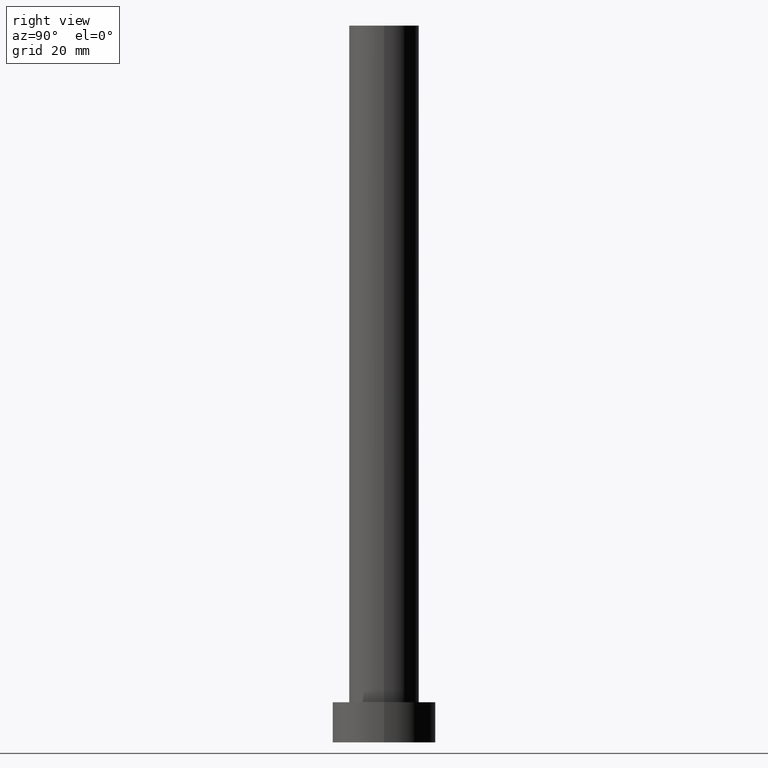
[diagram: clean part render]
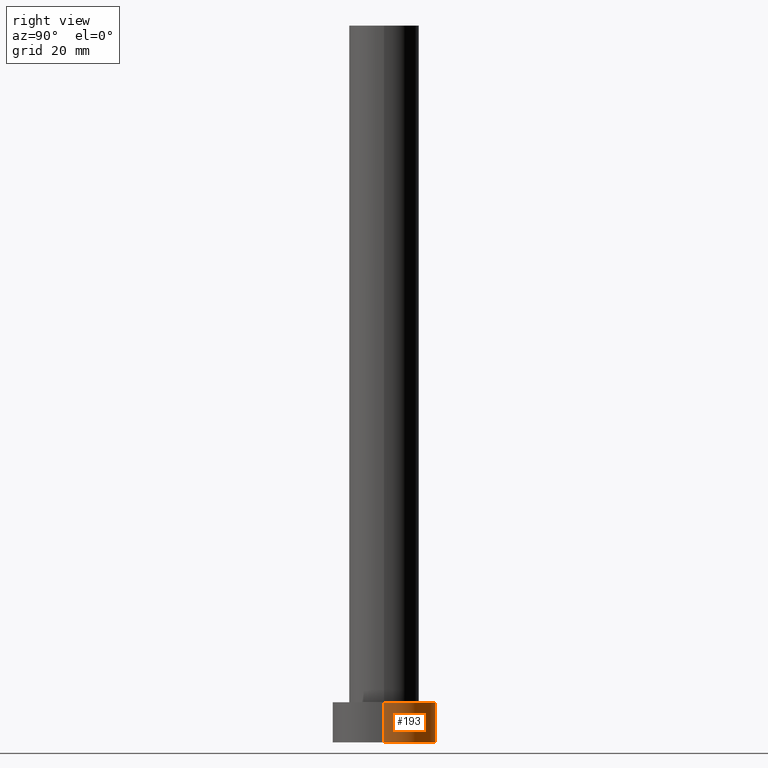
[diagram: same view with one face highlighted and labeled with its STEP entity id]
A machine part, right view. The second image highlights one B-rep face of the part: STEP entity #193.
In plain terms, the highlighted cylindrical surface (partial cylindrical patch) has radius 9 mm, axis along (-0, -0, -1).
Its self-contained STEP definition (entity closure, byte-faithful):
#21 = AXIS2_PLACEMENT_3D ( 'NONE', #67, #230, #252 ) ;
#22 = VERTEX_POINT ( 'NONE', #172 ) ;
#25 = CARTESIAN_POINT ( 'NONE',  ( 0.000000000000000000, 0.000000000000000000, 0.000000000000000000 ) ) ;
#30 = CARTESIAN_POINT ( 'NONE',  ( 0.000000000000000000, 0.000000000000000000, 7.000000000000000000 ) ) ;
#32 = EDGE_CURVE ( 'NONE', #238, #139, #147, .T. ) ;
#51 = LINE ( 'NONE', #105, #243 ) ;
#67 = CARTESIAN_POINT ( 'NONE',  ( 0.000000000000000000, 0.000000000000000000, 7.000000000000000000 ) ) ;
#73 = DIRECTION ( 'NONE',  ( 1.000000000000000000, 0.000000000000000000, 0.000000000000000000 ) ) ;
#76 = VERTEX_POINT ( 'NONE', #108 ) ;
#105 = CARTESIAN_POINT ( 'NONE',  ( 9.000000000000000000, 1.102182119232617714E-15, 7.000000000000000000 ) ) ;
#107 = DIRECTION ( 'NONE',  ( 0.000000000000000000, 0.000000000000000000, 1.000000000000000000 ) ) ;
#108 = CARTESIAN_POINT ( 'NONE',  ( -9.000000000000000000, 0.000000000000000000, 7.000000000000000000 ) ) ;
#121 = EDGE_CURVE ( 'NONE', #22, #76, #133, .T. ) ;
#133 = CIRCLE ( 'NONE', #197, 9.000000000000000000 ) ;
#134 = VECTOR ( 'NONE', #223, 1000.000000000000000 ) ;
#139 = VERTEX_POINT ( 'NONE', #247 ) ;
#143 = DIRECTION ( 'NONE',  ( -0.000000000000000000, -0.000000000000000000, -1.000000000000000000 ) ) ;
#145 = LINE ( 'NONE', #146, #134 ) ;
#146 = CARTESIAN_POINT ( 'NONE',  ( -9.000000000000000000, 0.000000000000000000, 7.000000000000000000 ) ) ;
#147 = CIRCLE ( 'NONE', #152, 9.000000000000000000 ) ;
#150 = EDGE_CURVE ( 'NONE', #22, #238, #51, .T. ) ;
#152 = AXIS2_PLACEMENT_3D ( 'NONE', #25, #178, #73 ) ;
#172 = CARTESIAN_POINT ( 'NONE',  ( 9.000000000000000000, 1.102182119232617714E-15, 7.000000000000000000 ) ) ;
#178 = DIRECTION ( 'NONE',  ( 0.000000000000000000, 0.000000000000000000, 1.000000000000000000 ) ) ;
#187 = CYLINDRICAL_SURFACE ( 'NONE', #21, 9.000000000000000000 ) ;
#188 = EDGE_CURVE ( 'NONE', #76, #139, #145, .T. ) ;
#190 = CARTESIAN_POINT ( 'NONE',  ( 9.000000000000000000, 1.102182119232617714E-15, 0.000000000000000000 ) ) ;
#193 = ADVANCED_FACE ( 'NONE', ( #228 ), #187, .T. ) ;
#197 = AXIS2_PLACEMENT_3D ( 'NONE', #30, #107, #248 ) ;
#198 = ORIENTED_EDGE ( 'NONE', *, *, #188, .F. ) ;
#200 = ORIENTED_EDGE ( 'NONE', *, *, #121, .F. ) ;
#214 = ORIENTED_EDGE ( 'NONE', *, *, #32, .T. ) ;
#218 = EDGE_LOOP ( 'NONE', ( #200, #244, #214, #198 ) ) ;
#223 = DIRECTION ( 'NONE',  ( -0.000000000000000000, -0.000000000000000000, -1.000000000000000000 ) ) ;
#228 = FACE_OUTER_BOUND ( 'NONE', #218, .T. ) ;
#230 = DIRECTION ( 'NONE',  ( -0.000000000000000000, -0.000000000000000000, -1.000000000000000000 ) ) ;
#238 = VERTEX_POINT ( 'NONE', #190 ) ;
#243 = VECTOR ( 'NONE', #143, 1000.000000000000000 ) ;
#244 = ORIENTED_EDGE ( 'NONE', *, *, #150, .T. ) ;
#247 = CARTESIAN_POINT ( 'NONE',  ( -9.000000000000000000, 0.000000000000000000, 0.000000000000000000 ) ) ;
#248 = DIRECTION ( 'NONE',  ( 1.000000000000000000, 0.000000000000000000, 0.000000000000000000 ) ) ;
#252 = DIRECTION ( 'NONE',  ( -1.000000000000000000, 0.000000000000000000, 0.000000000000000000 ) ) ;